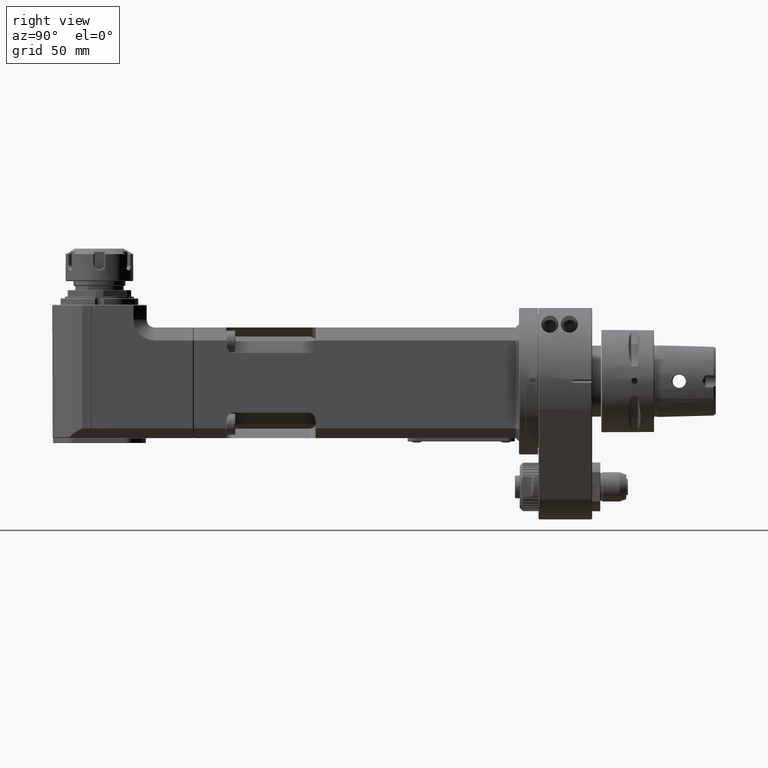
[diagram: clean part render]
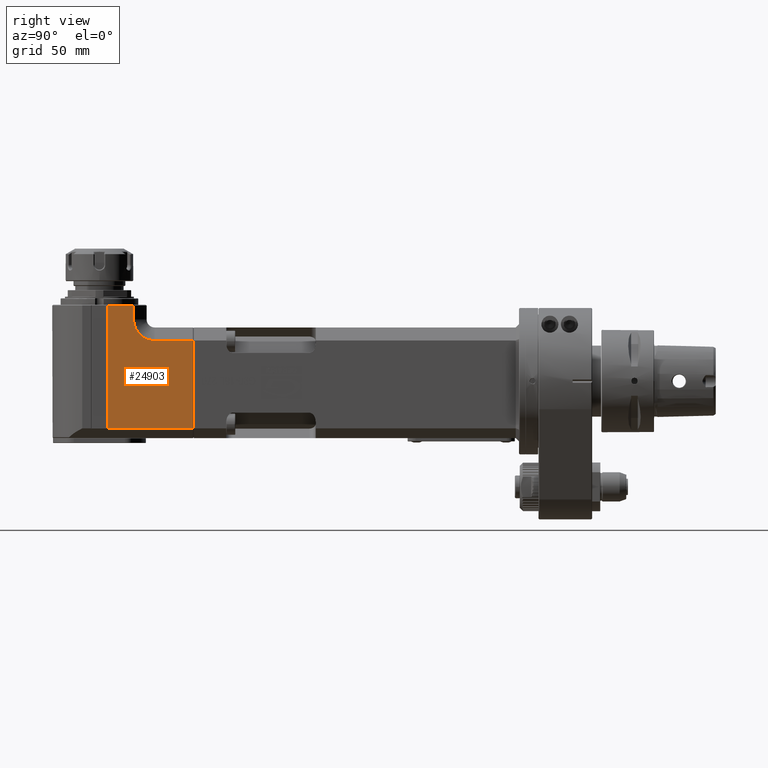
[diagram: same view with one face highlighted and labeled with its STEP entity id]
A machine part, right view. The second image highlights one B-rep face of the part: STEP entity #24903.
In plain terms, the highlighted planar face has unit normal (1, 0, -0).
Its self-contained STEP definition (entity closure, byte-faithful):
#513=PLANE('',#26610);
#2183=FACE_OUTER_BOUND('',#3721,.T.);
#3721=EDGE_LOOP('',(#17589,#17590,#17591,#17592,#17593,#17594,#17595));
#5561=CIRCLE('',#26611,13.);
#6718=LINE('',#37243,#8756);
#6735=LINE('',#37276,#8773);
#6736=LINE('',#37281,#8774);
#6737=LINE('',#37283,#8775);
#6738=LINE('',#37285,#8776);
#6739=LINE('',#37286,#8777);
#8756=VECTOR('',#29534,54.);
#8773=VECTOR('',#29567,23.5);
#8774=VECTOR('',#29572,8.5);
#8775=VECTOR('',#29573,15.8);
#8776=VECTOR('',#29574,75.5);
#8777=VECTOR('',#29575,52.3);
#10891=VERTEX_POINT('',#37240);
#10892=VERTEX_POINT('',#37242);
#10900=VERTEX_POINT('',#37274);
#10901=VERTEX_POINT('',#37278);
#10902=VERTEX_POINT('',#37280);
#10903=VERTEX_POINT('',#37282);
#10904=VERTEX_POINT('',#37284);
#13480=EDGE_CURVE('',#10891,#10892,#6718,.T.);
#13497=EDGE_CURVE('',#10891,#10900,#6735,.T.);
#13498=EDGE_CURVE('',#10901,#10900,#5561,.T.);
#13499=EDGE_CURVE('',#10902,#10901,#6736,.T.);
#13500=EDGE_CURVE('',#10902,#10903,#6737,.T.);
#13501=EDGE_CURVE('',#10903,#10904,#6738,.T.);
#13502=EDGE_CURVE('',#10892,#10904,#6739,.T.);
#17589=ORIENTED_EDGE('',*,*,#13480,.F.);
#17590=ORIENTED_EDGE('',*,*,#13497,.T.);
#17591=ORIENTED_EDGE('',*,*,#13498,.F.);
#17592=ORIENTED_EDGE('',*,*,#13499,.F.);
#17593=ORIENTED_EDGE('',*,*,#13500,.T.);
#17594=ORIENTED_EDGE('',*,*,#13501,.T.);
#17595=ORIENTED_EDGE('',*,*,#13502,.F.);
#24903=ADVANCED_FACE('',(#2183),#513,.T.);
#26610=AXIS2_PLACEMENT_3D('',#37277,#29568,#29569);
#26611=AXIS2_PLACEMENT_3D('',#37279,#29570,#29571);
#29534=DIRECTION('',(0.,0.,-1.));
#29567=DIRECTION('',(0.,-1.,0.));
#29568=DIRECTION('center_axis',(1.,0.,0.));
#29569=DIRECTION('ref_axis',(0.,0.,-1.));
#29570=DIRECTION('center_axis',(1.,0.,0.));
#29571=DIRECTION('ref_axis',(0.,-1.,0.));
#29572=DIRECTION('',(0.,0.,-1.));
#29573=DIRECTION('',(0.,-1.,0.));
#29574=DIRECTION('',(0.,0.,-1.));
#29575=DIRECTION('',(0.,-1.,0.));
#37240=CARTESIAN_POINT('',(29.,-212.5,25.));
#37242=CARTESIAN_POINT('',(29.,-212.5,-29.));
#37243=CARTESIAN_POINT('',(29.,-212.5,25.));
#37274=CARTESIAN_POINT('',(29.,-236.,25.));
#37276=CARTESIAN_POINT('',(29.,-212.5,25.));
#37277=CARTESIAN_POINT('Origin',(29.,-299.,47.));
#37278=CARTESIAN_POINT('',(29.,-249.,38.));
#37279=CARTESIAN_POINT('Origin',(29.,-236.,38.));
#37280=CARTESIAN_POINT('',(29.,-249.,46.5));
#37281=CARTESIAN_POINT('',(29.,-249.,46.5));
#37282=CARTESIAN_POINT('',(29.,-264.8,46.5));
#37283=CARTESIAN_POINT('',(29.,-249.,46.5));
#37284=CARTESIAN_POINT('',(29.,-264.8,-29.));
#37285=CARTESIAN_POINT('',(29.,-264.8,46.5));
#37286=CARTESIAN_POINT('',(29.,-212.5,-29.));